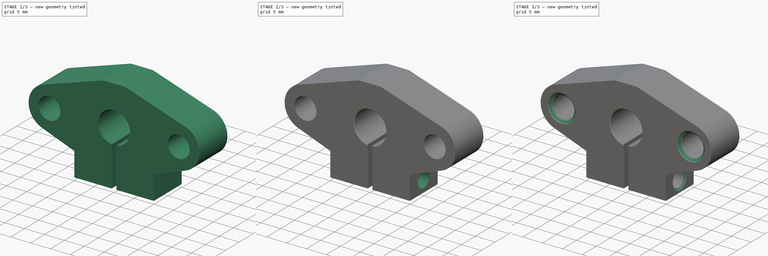
[diagram: build sequence overview — one tinted view per stage of 3, left to right]
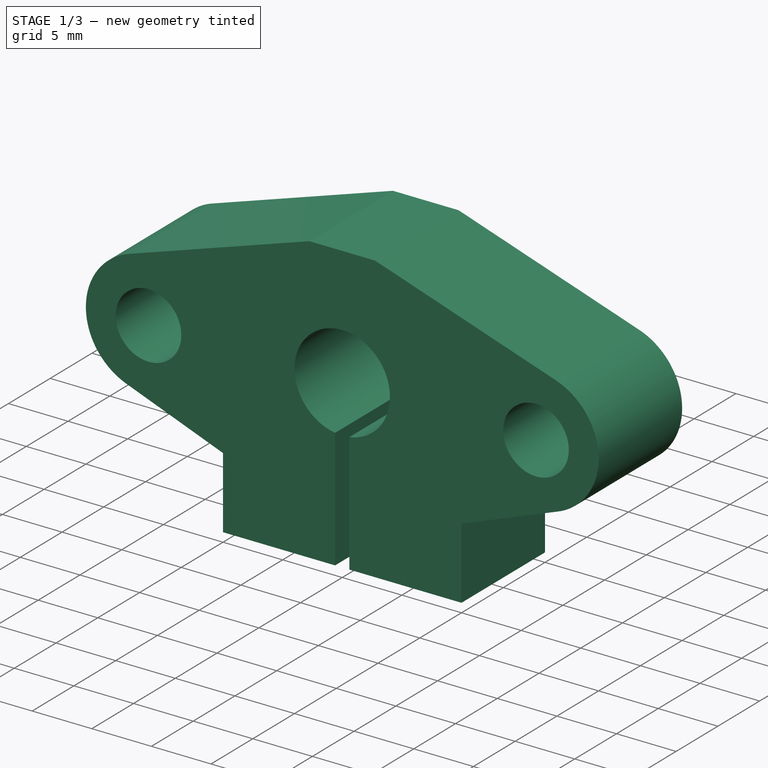
[diagram: stage 1 of 3 — iso view after this stage's code; geometry added in this stage tinted green]
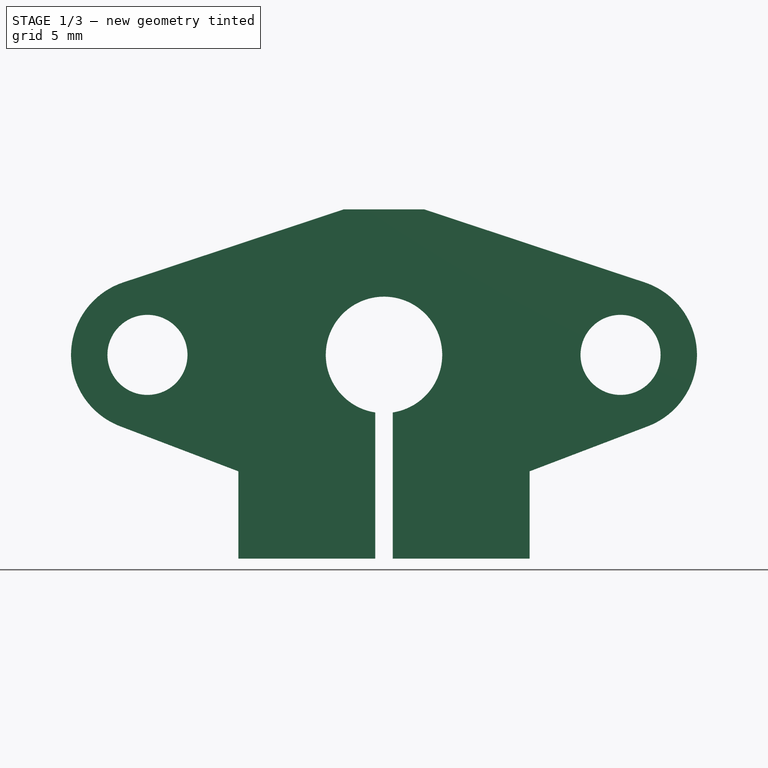
[diagram: stage 1 of 3 — front view after this stage's code; geometry added in this stage tinted green]
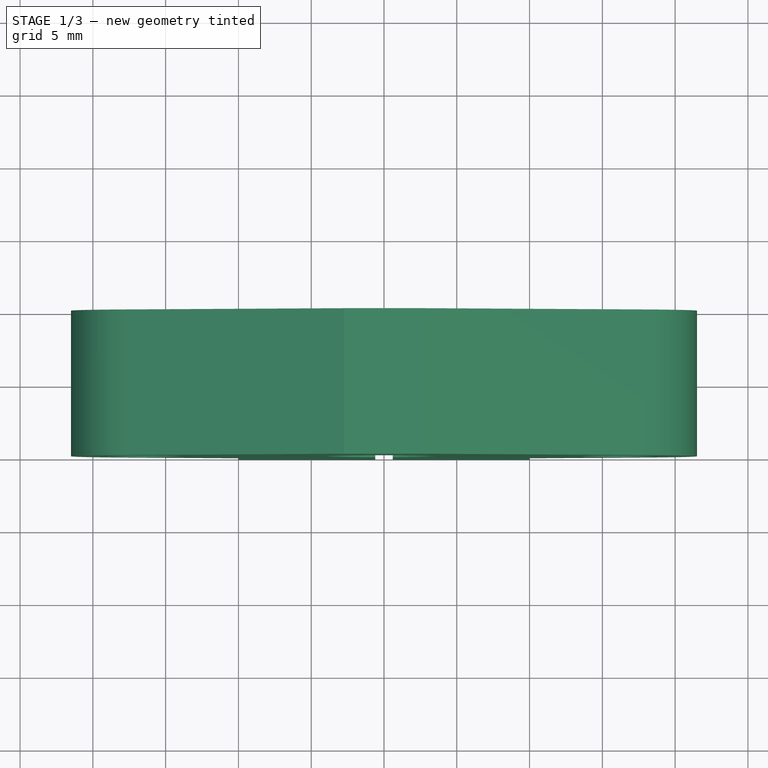
[diagram: stage 1 of 3 — top view after this stage's code; geometry added in this stage tinted green]
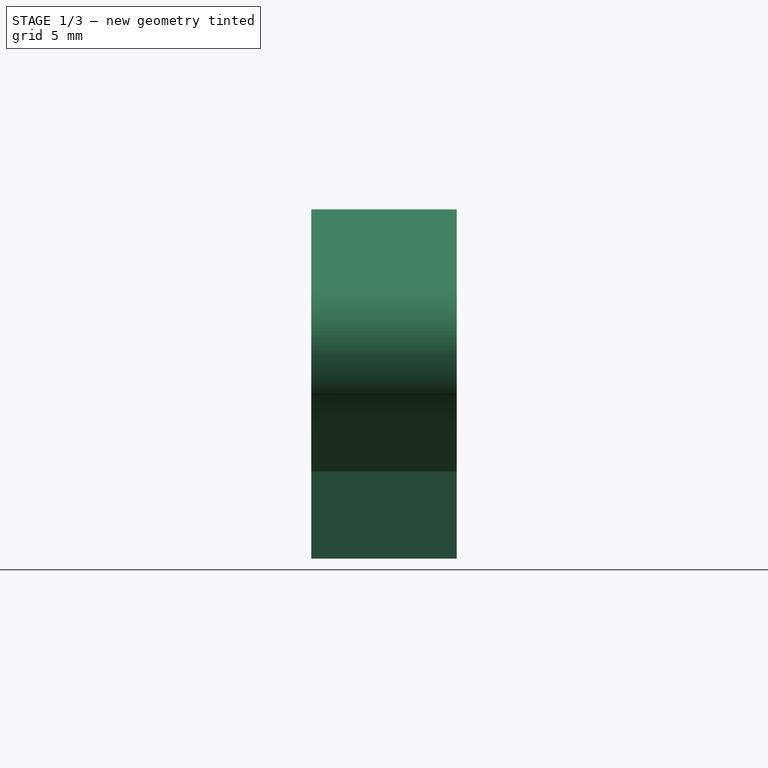
[diagram: stage 1 of 3 — right view after this stage's code; geometry added in this stage tinted green]
FCSTD DOCUMENT  (FreeCAD 2022.111R30764 (Git))
Label: SHF08
License: Creative Commons Attribution
LicenseURL: http://creativecommons.org/licenses/by/4.0/
objects: Sketcher::SketchObject×3, PartDesign::Chamfer×3, PartDesign::Pocket×2, PartDesign::Pad×1, PartDesign::Body×1, App::Part×1
note: 22 computed .brp shape members not serialized (recipe doc carries the construction recipe); baked Part::Feature solids carry a one-line shape summary decoded from their .brp

FEATURE [Sketcher::SketchObject] Sketch
  FullyConstrained = true
  MapMode = 5
  Placement = pos=(0,0,0) rot=(1,0,0;1.5708rad)
  Support = -> [XZ_Plane]
  TreeRank = 18
  sketch-geometry (17):
    g0: Circle CenterX=-16.25 CenterY=0 CenterZ=0 NormalX=0 NormalY=0 NormalZ=1 AngleXU=0 Radius=2.75
    g1: ArcOfCircle CenterX=-16.25 CenterY=0 CenterZ=0 NormalX=0 NormalY=0 NormalZ=1 AngleXU=0 Radius=5.25 StartAngle=1.89053 EndAngle=4.3483
    g2: Circle CenterX=16.25 CenterY=0 CenterZ=0 NormalX=0 NormalY=0 NormalZ=1 AngleXU=0 Radius=2.75
    g3: ArcOfCircle CenterX=16.25 CenterY=0 CenterZ=0 NormalX=0 NormalY=0 NormalZ=1 AngleXU=0 Radius=5.25 StartAngle=5.07648 EndAngle=7.53425
    g4: Circle CenterX=0 CenterY=0 CenterZ=0 NormalX=0 NormalY=0 NormalZ=1 AngleXU=0 Radius=4
    g5: LineSegment StartX=-17.9001 StartY=4.98393 StartZ=0 EndX=-2.75 EndY=10 EndZ=0
    g6: LineSegment StartX=-2.75 StartY=10 StartZ=0 EndX=2.75 EndY=10 EndZ=0
    g7: LineSegment StartX=2.75 StartY=10 StartZ=0 EndX=17.9001 EndY=4.98393 EndZ=0
    g8: GeomPoint [constr] X=-8e-16 Y=10 Z=0
    g9: LineSegment StartX=-18.1195 StartY=-4.90586 StartZ=0 EndX=-10 EndY=-8 EndZ=0
    g10: LineSegment StartX=-10 StartY=-8 StartZ=0 EndX=-10 EndY=-14 EndZ=0
    g11: LineSegment StartX=-10 StartY=-14 StartZ=0 EndX=10 EndY=-14 EndZ=0
    g12: LineSegment StartX=10 StartY=-14 StartZ=0 EndX=10 EndY=-8 EndZ=0
    g13: LineSegment StartX=10 StartY=-8 StartZ=0 EndX=18.1195 EndY=-4.90586 EndZ=0
    g14: GeomPoint [constr] X=0 Y=-14 Z=0
    g15: GeomPoint [constr] X=-21.5 Y=0 Z=0
    g16: GeomPoint [constr] X=21.5 Y=0 Z=0
  constraints (39):
    c: PointOnObject(g0,g-1)
    c: Coincident(g1,g0)
    c: Coincident(g3,g2)
    c: Equal(g2,g0)
    c: Equal(g1,g3)
    c: Diameter(g4) = 8
    c: Diameter(g2) = 5.5
    c: Coincident(g4,g-1)
    c: Coincident(g5,g6)
    c: Horizontal(g6)
    c: Coincident(g6,g7)
    c: DistanceY(g5) = 10
    c: DistanceX(g0,g2) = 32.5
    c: Symmetric(g2,g0,g4)
    c: Equal(g7,g5)
    c: Symmetric(g6,g5,g8)
    c: Coincident(g9,g10)
    c: Vertical(g10)
    c: Coincident(g10,g11)
    c: Horizontal(g11)
    c: Coincident(g11,g12)
    c: Vertical(g12)
    c: Coincident(g12,g13)
    c: Vertical(g14,g4)
    c: Symmetric(g11,g10,g14)
    c: DistanceX(g11,g11) = 20
    c: DistanceY(g11,g6) = 24
    c: PointOnObject(g15,g1)
    c: PointOnObject(g16,g3)
    c: PointOnObject(g16,g-1)
    c: PointOnObject(g15,g-1)
    c: DistanceX(g15,g16) = 43
    c: Equal(g12,g10)
    c: Tangent(g1,g9) = -1.5708
    c: Tangent(g1,g5) = 1.5708
    c: Tangent(g3,g7) = 1.5708
    c: Tangent(g3,g13) = -1.5708
    c: DistanceX(g6,g6) = 5.5
    c: DistanceY(g12,g12) = 6
FEATURE [PartDesign::Pad] Pad
  AddSubType = 0
  AlongSketchNormal = false
  CheckUpToFaceLimits = true
  ClaimChildren = false
  Direction = (0,-1,2e-16)
  Fit = 0
  FitJoin = 0
  InnerFit = 0
  InnerFitJoin = 0
  InnerTaperAngle = 0
  InnerTaperAngleRev = 0
  Length = 10
  Length2 = 100
  Linearize = true
  NewSolid = false
  Placement = pos=(0,0,0) rot=(1,0,0;1.5708rad)
  Profile = -> Sketch
  Suppress = false
  TreeRank = 19
  Type = 0
  _ProfileBasedVersion = 1
FEATURE [Sketcher::SketchObject] Sketch001
  ExternalGeometry = -> [Pad]
  FullyConstrained = true
  MapMode = 5
  Placement = pos=(0,-10,6.7e-15) rot=(1,0,0;1.5708rad)
  Support = -> [Pad]
  TreeRank = 20
  sketch-geometry (5):
    g0: LineSegment StartX=-0.6 StartY=-14 StartZ=0 EndX=0.6 EndY=-14 EndZ=0
    g1: LineSegment StartX=0.6 StartY=-14 StartZ=0 EndX=0.6 EndY=-3 EndZ=0
    g2: LineSegment StartX=0.6 StartY=-3 StartZ=0 EndX=-0.6 EndY=-3 EndZ=0
    g3: LineSegment StartX=-0.6 StartY=-3 StartZ=0 EndX=-0.6 EndY=-14 EndZ=0
    g4: GeomPoint [constr] X=0 Y=-3 Z=0
  constraints (13):
    c: Coincident(g0,g1)
    c: Coincident(g1,g2)
    c: Coincident(g2,g3)
    c: Coincident(g3,g0)
    c: Horizontal(g0)
    c: Horizontal(g2)
    c: Vertical(g1)
    c: Vertical(g3)
    c: PointOnObject(g0,g-3)
    c: Vertical(g4,g-1)
    c: Symmetric(g1,g2,g4)
    c: DistanceX(g2,g2) = 1.2
    c: DistanceY(g1,g1) = 11
FEATURE [PartDesign::Pocket] Pocket
  AddSubType = 1
  BaseFeature = -> Pad
  CheckUpToFaceLimits = true
  ClaimChildren = false
  Fit = 0
  FitJoin = 0
  InnerFit = 0
  InnerFitJoin = 0
  InnerTaperAngle = 0
  InnerTaperAngleRev = 0
  Length = 5
  Length2 = 100
  Linearize = true
  NewSolid = false
  Placement = pos=(0,0,0) rot=(1,0,0;1.5708rad)
  Profile = -> Sketch001
  Suppress = false
  TreeRank = 21
  Type = 2
  _ProfileBasedVersion = 1
  _Version = 1
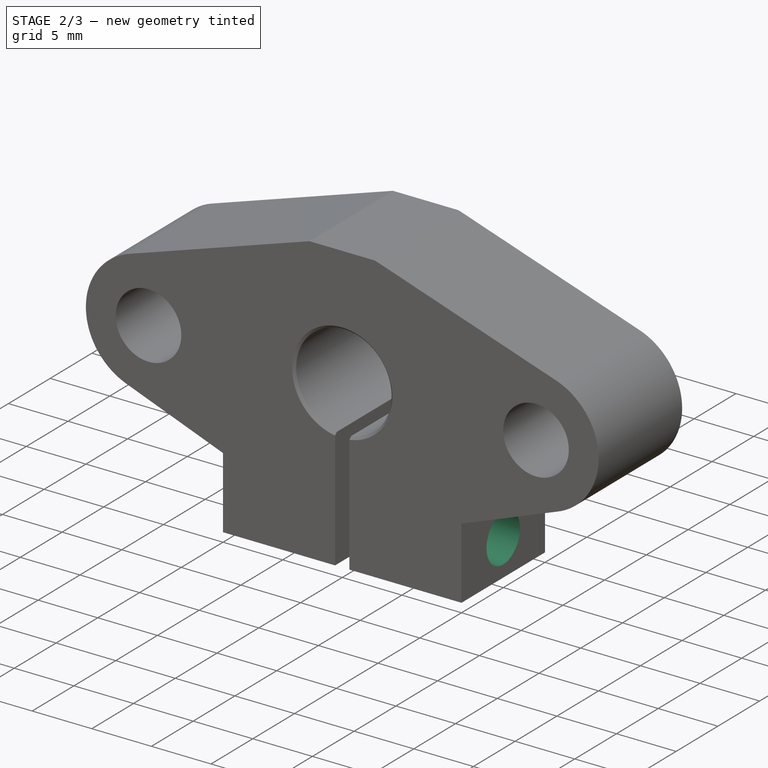
[diagram: stage 2 of 3 — iso view after this stage's code; geometry added in this stage tinted green]
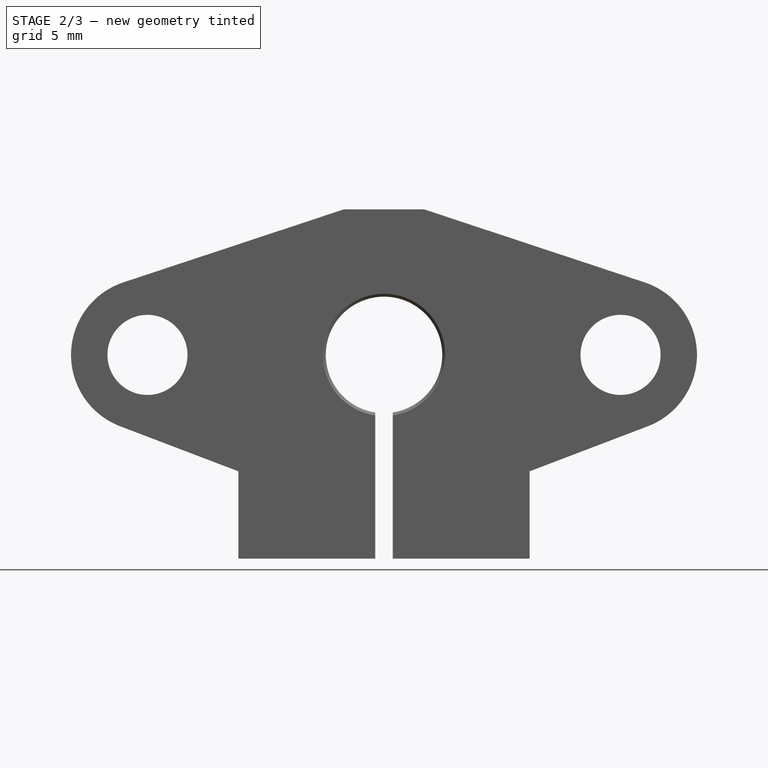
[diagram: stage 2 of 3 — front view after this stage's code; geometry added in this stage tinted green]
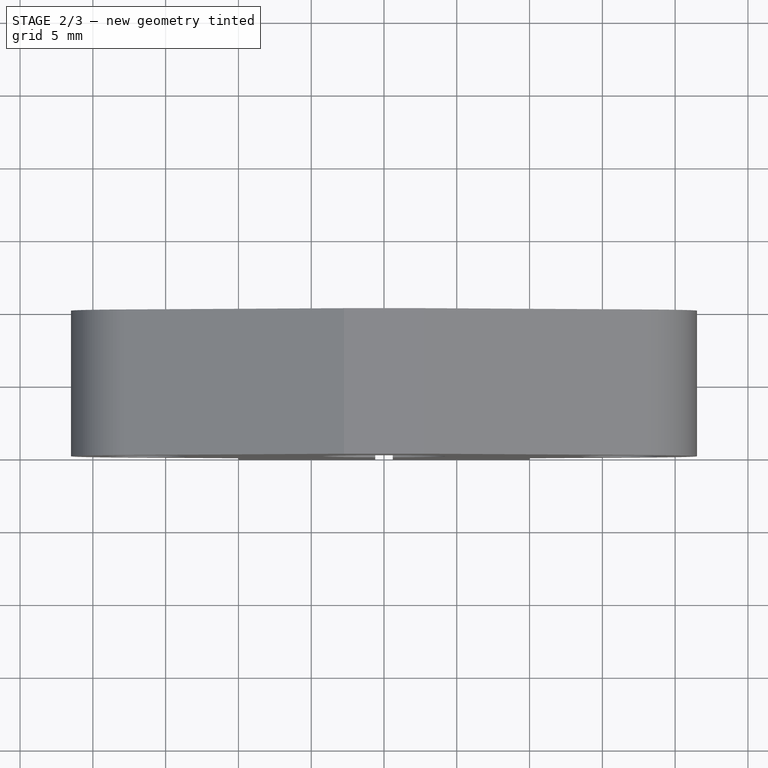
[diagram: stage 2 of 3 — top view after this stage's code; geometry added in this stage tinted green]
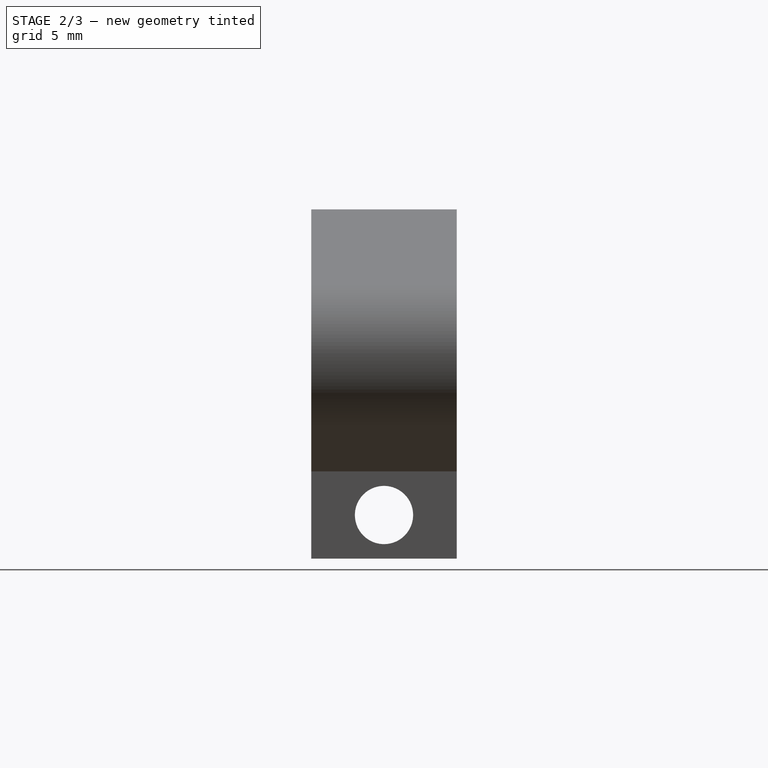
[diagram: stage 2 of 3 — right view after this stage's code; geometry added in this stage tinted green]
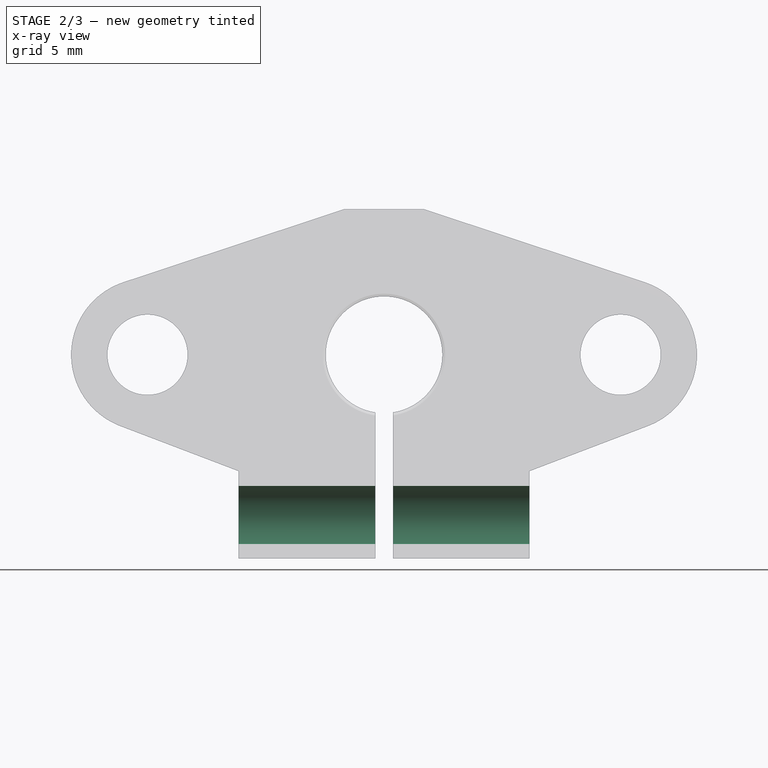
[diagram: stage 2 of 3 — x-ray composite at the front view; earlier geometry ghosted, this stage's added geometry solid]
FEATURE [Sketcher::SketchObject] Sketch002
  ExternalGeometry = -> [Pocket]
  FullyConstrained = true
  MapMode = 5
  Placement = pos=(10,0,0) rot=(0.707107,0,0.707107;3.14159rad)
  Support = -> [Pocket]
  TreeRank = 22
  sketch-geometry (4):
    g0: Circle CenterX=-11 CenterY=5 CenterZ=0 NormalX=0 NormalY=0 NormalZ=1 AngleXU=0 Radius=2
    g1: LineSegment [constr] StartX=-14 StartY=10 StartZ=0 EndX=-8 EndY=8.9e-15 EndZ=0
    g2: LineSegment [constr] StartX=-8 StartY=10 StartZ=0 EndX=-14 EndY=0 EndZ=0
    g3: GeomPoint [constr] X=-11 Y=5 Z=0
  constraints (9):
    c: Diameter(g0) = 4
    c: Coincident(g1,g-3)
    c: Coincident(g1,g-4)
    c: Coincident(g2,g-4)
    c: PointOnObject(g2,g-1)
    c: Vertical(g2,g-3)
    c: PointOnObject(g3,g2)
    c: PointOnObject(g3,g1)
    c: Coincident(g0,g3)
FEATURE [PartDesign::Pocket] Pocket001
  AddSubType = 1
  BaseFeature = -> Pocket
  CheckUpToFaceLimits = true
  ClaimChildren = false
  Fit = 0
  FitJoin = 0
  InnerFit = 0
  InnerFitJoin = 0
  InnerTaperAngle = 0
  InnerTaperAngleRev = 0
  Length = 5
  Length2 = 100
  Linearize = true
  NewSolid = false
  Placement = pos=(0,0,0) rot=(1,0,0;1.5708rad)
  Profile = -> Sketch002
  Suppress = false
  TreeRank = 23
  Type = 1
  _ProfileBasedVersion = 1
  _Version = 1
FEATURE [PartDesign::Chamfer] Chamfer
  AddSubType = 0
  Angle = 45
  Base = -> Pocket001 [Edge29,Edge30,Edge15,Edge16]
  BaseFeature = -> Pocket001
  ChamferType = 0
  FlipDirection = false
  NewSolid = false
  Placement = pos=(0,0,0) rot=(1,0,0;1.5708rad)
  Size = 0.2
  Size2 = 1
  SupportTransform = false
  Suppress = false
  TreeRank = 24
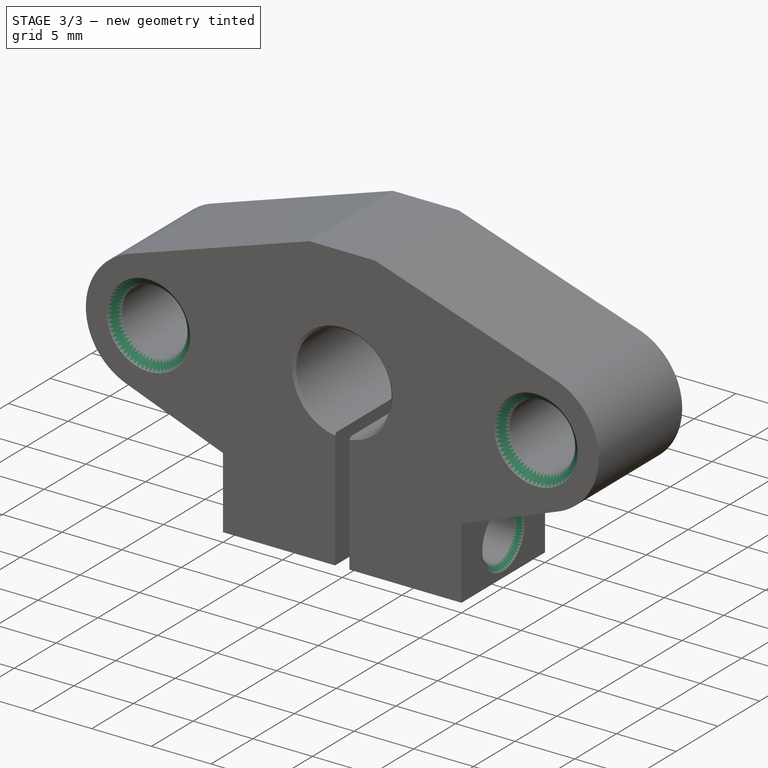
[diagram: stage 3 of 3 — iso view after this stage's code; geometry added in this stage tinted green]
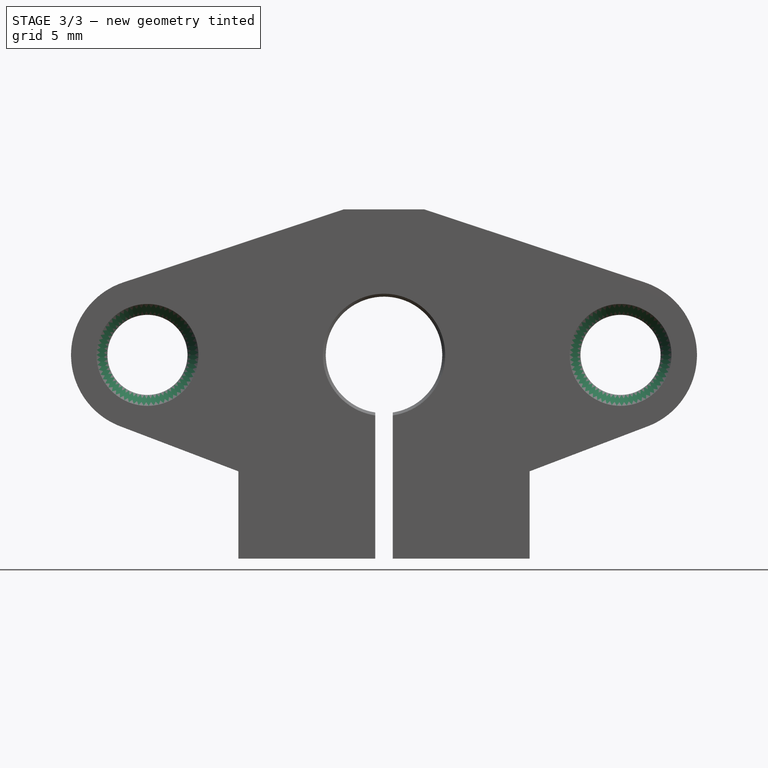
[diagram: stage 3 of 3 — front view after this stage's code; geometry added in this stage tinted green]
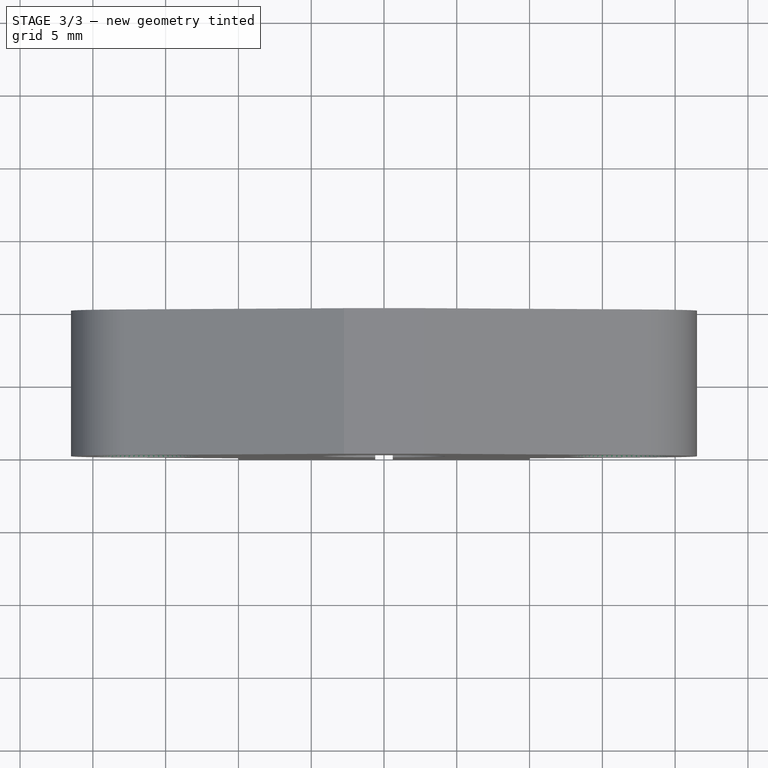
[diagram: stage 3 of 3 — top view after this stage's code; geometry added in this stage tinted green]
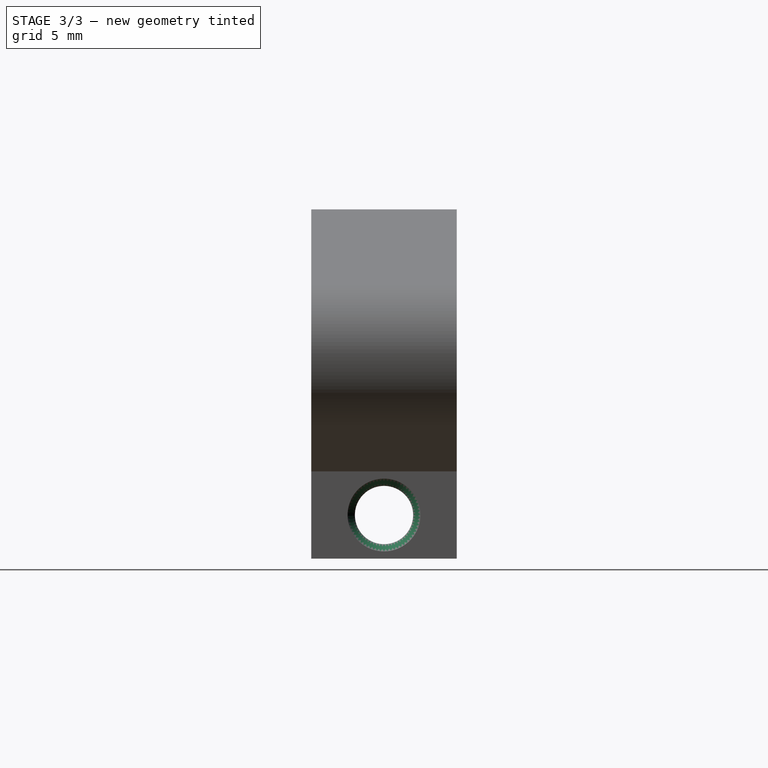
[diagram: stage 3 of 3 — right view after this stage's code; geometry added in this stage tinted green]
FEATURE [PartDesign::Chamfer] Chamfer001
  AddSubType = 0
  Angle = 45
  Base = -> Chamfer [Edge59,Edge57,Edge16,Edge17]
  BaseFeature = -> Chamfer
  ChamferType = 0
  FlipDirection = false
  NewSolid = false
  Placement = pos=(0,0,0) rot=(1,0,0;1.5708rad)
  Size = 0.75
  Size2 = 1
  SupportTransform = false
  Suppress = false
  TreeRank = 25
FEATURE [PartDesign::Chamfer] Chamfer002
  AddSubType = 0
  Angle = 45
  Base = -> Chamfer001 [Edge48,Edge34]
  BaseFeature = -> Chamfer001
  ChamferType = 0
  FlipDirection = false
  NewSolid = false
  Placement = pos=(0,0,0) rot=(1,0,0;1.5708rad)
  Size = 0.5
  Size2 = 1
  SupportTransform = false
  Suppress = false
  TreeRank = 26
FEATURE [PartDesign::Body] Body
  AutoGroupSolids = false
  ExportMode = 0
  Group = -> [Sketch,Pad,Sketch001,Pocket,Sketch002,Pocket001,Chamfer,Chamfer001,Chamfer002]
  Origin = -> Origin001
  Tip = -> Chamfer002
  TreeRank = 17
  _ExportChildren = -> [Pad,Pocket,Pocket001,Chamfer,Chamfer001,Chamfer002]
  _GroupVersion = 1
FEATURE [App::Part] Part  label="SHF08"
  ExportMode = 1
  Group = -> [Body]
  Origin = -> Origin
  TreeRank = 5
  _ExportChildren = -> [Body]
  _GroupVersion = 1
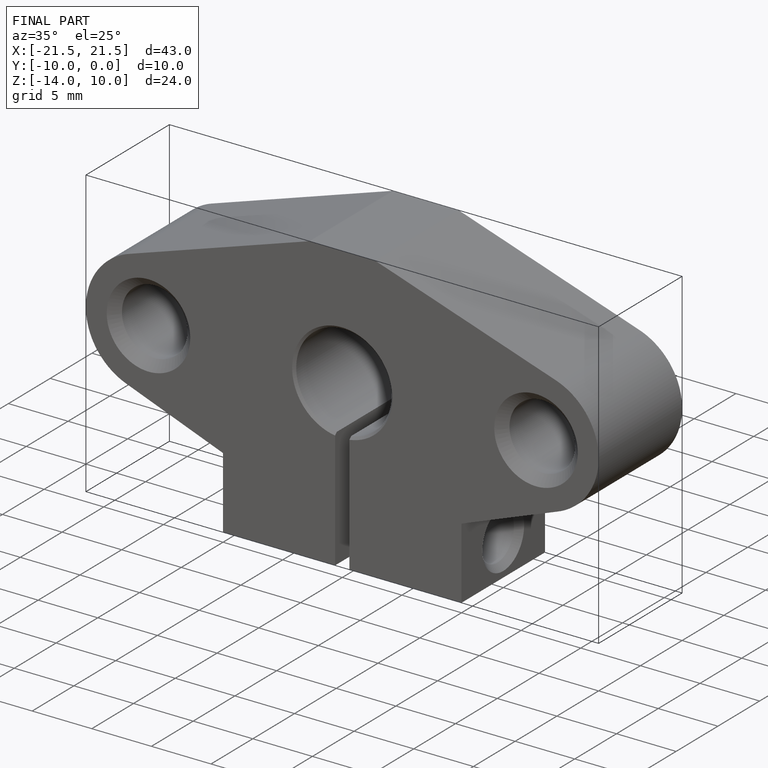
[diagram: finished part — iso view with bounding-box wireframe]
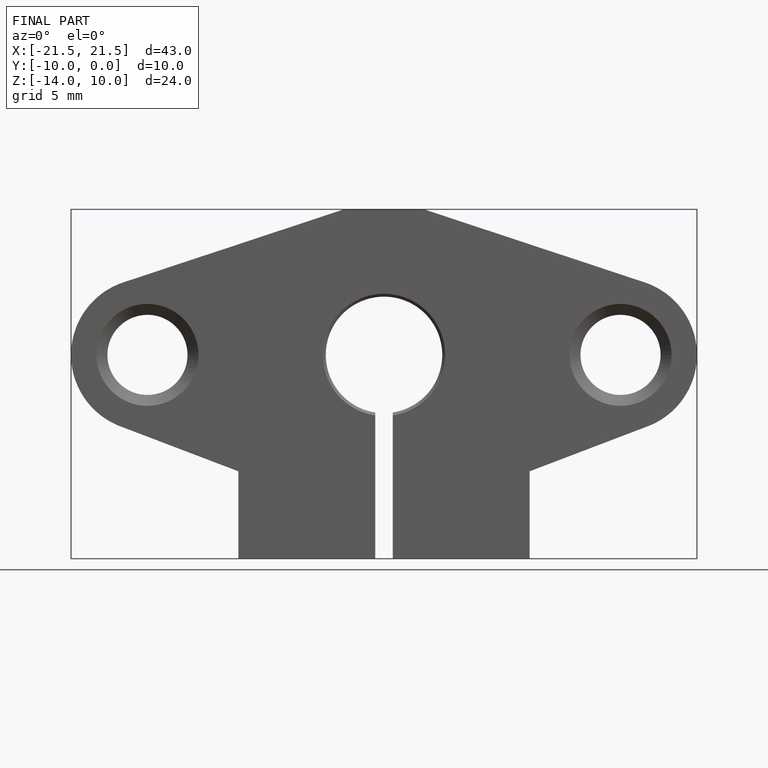
[diagram: finished part — front view with bounding-box wireframe]
